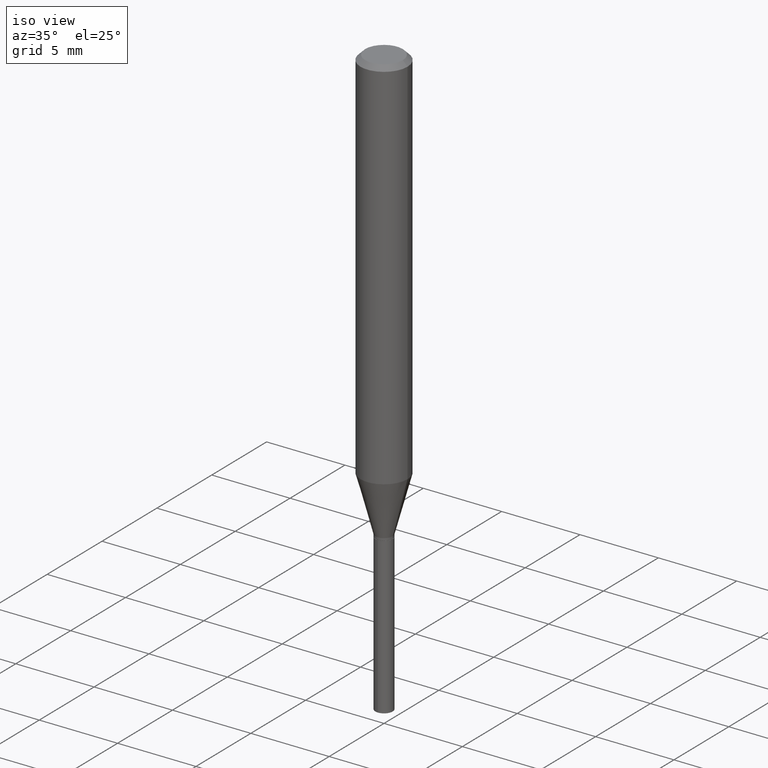
[diagram: clean part render]
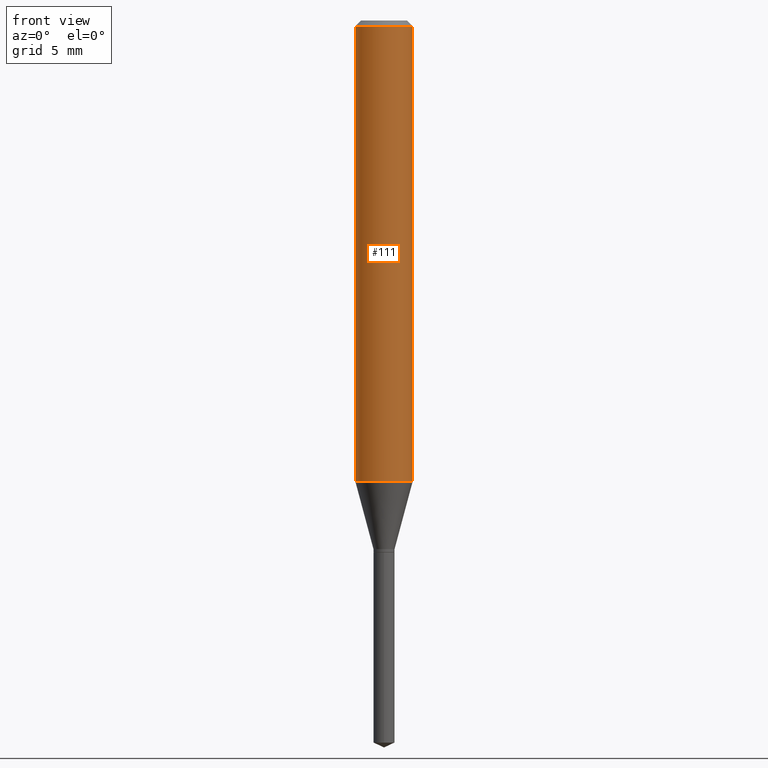
[diagram: tour spotlight — one face highlighted and labeled with its STEP entity id]
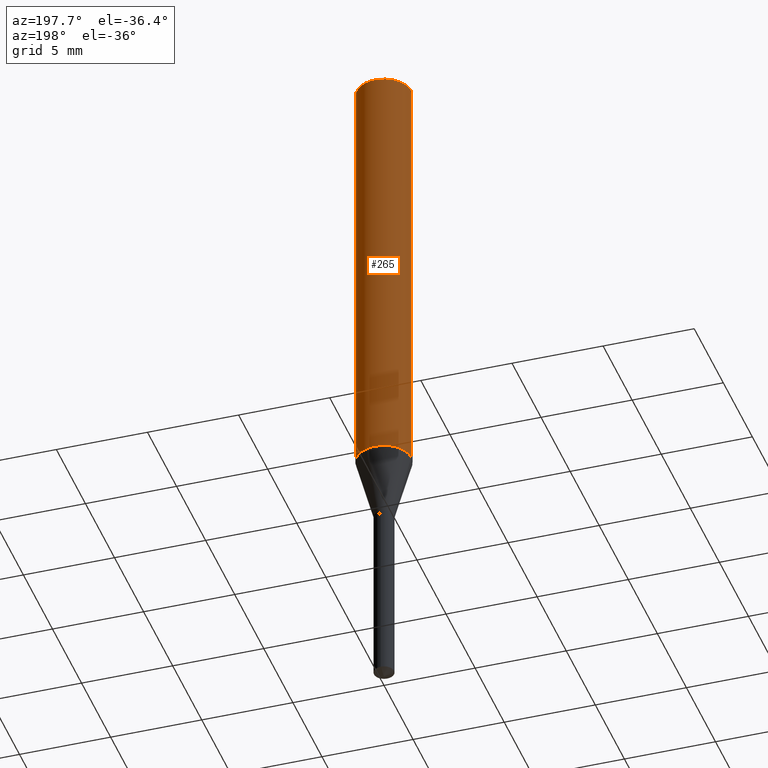
[diagram: tour spotlight — one face highlighted and labeled with its STEP entity id]
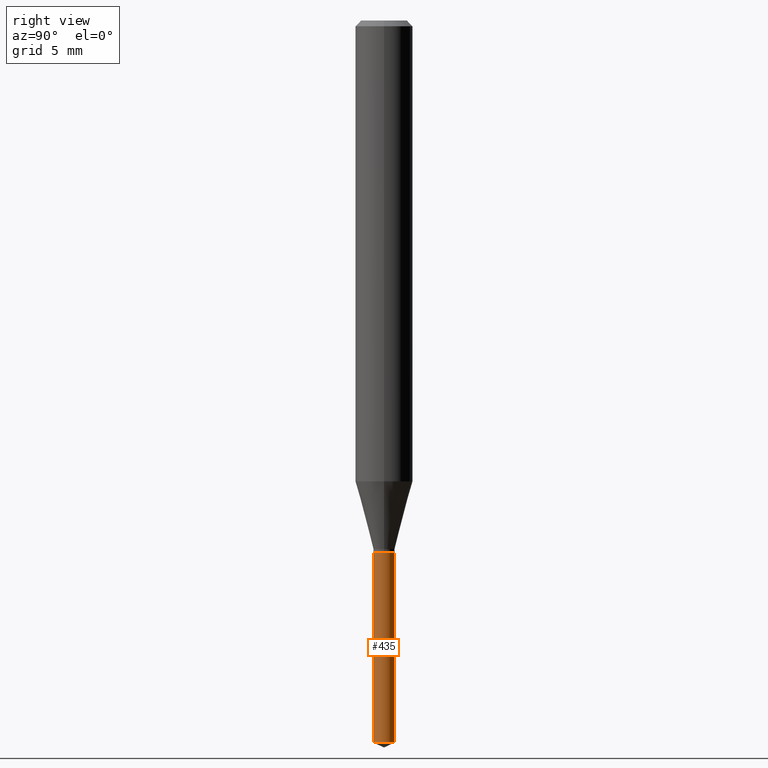
[diagram: tour spotlight — one face highlighted and labeled with its STEP entity id]
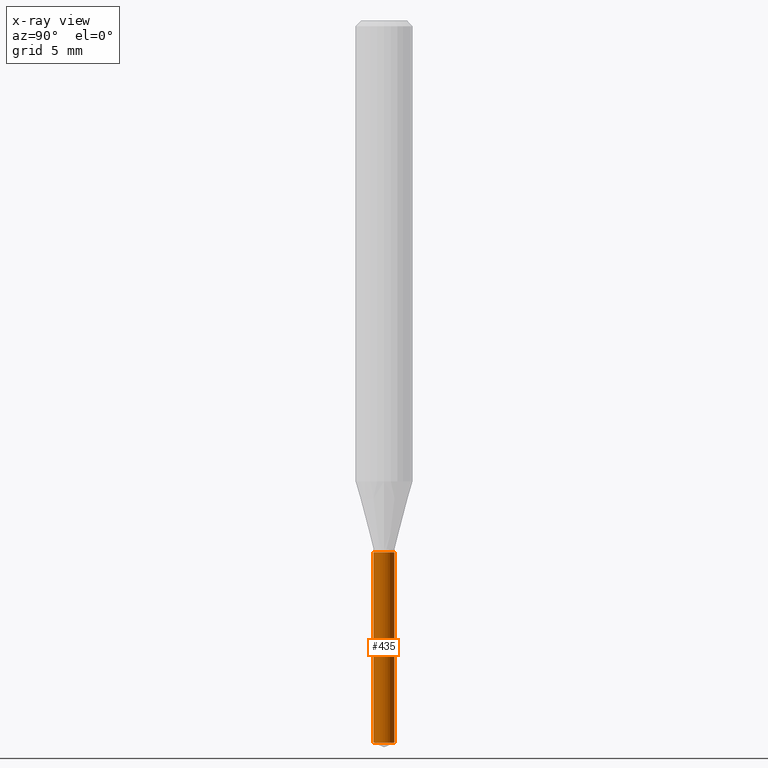
[diagram: x-ray of the same camera — body ghosted, this tour face saturated]
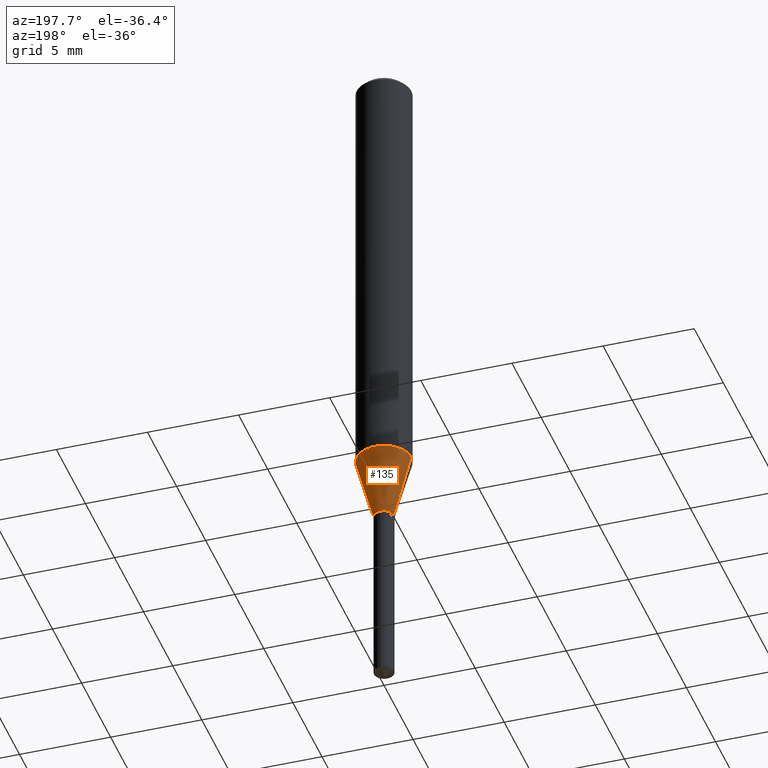
[diagram: tour spotlight — one face highlighted and labeled with its STEP entity id]
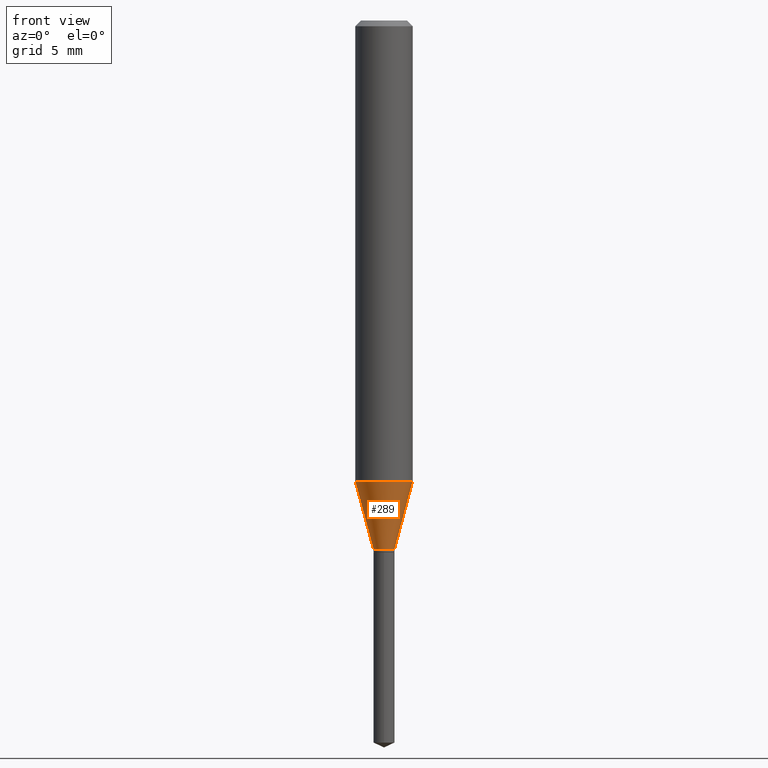
[diagram: tour spotlight — one face highlighted and labeled with its STEP entity id]
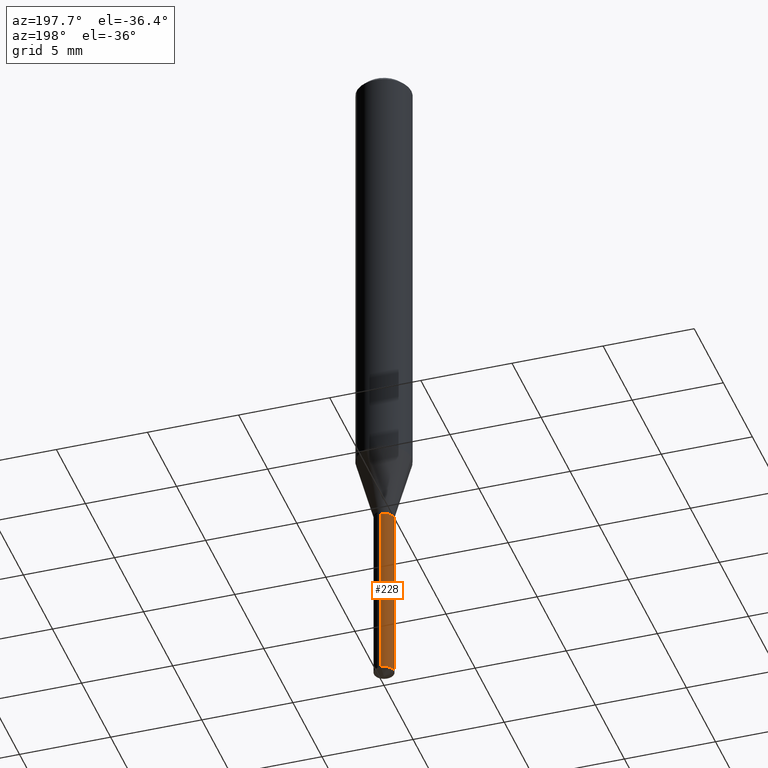
[diagram: tour spotlight — one face highlighted and labeled with its STEP entity id]
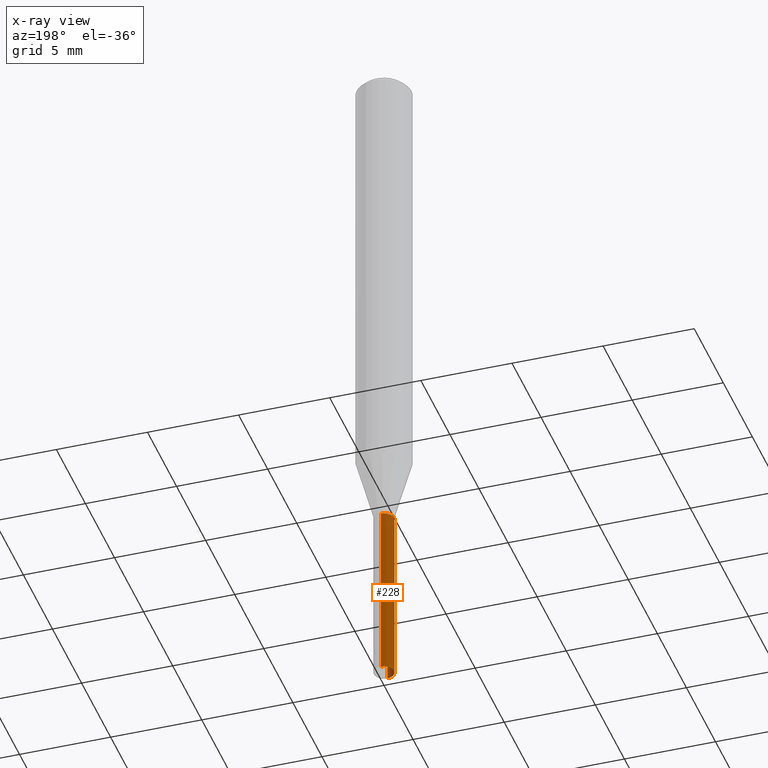
[diagram: x-ray of the same camera — body ghosted, this tour face saturated]
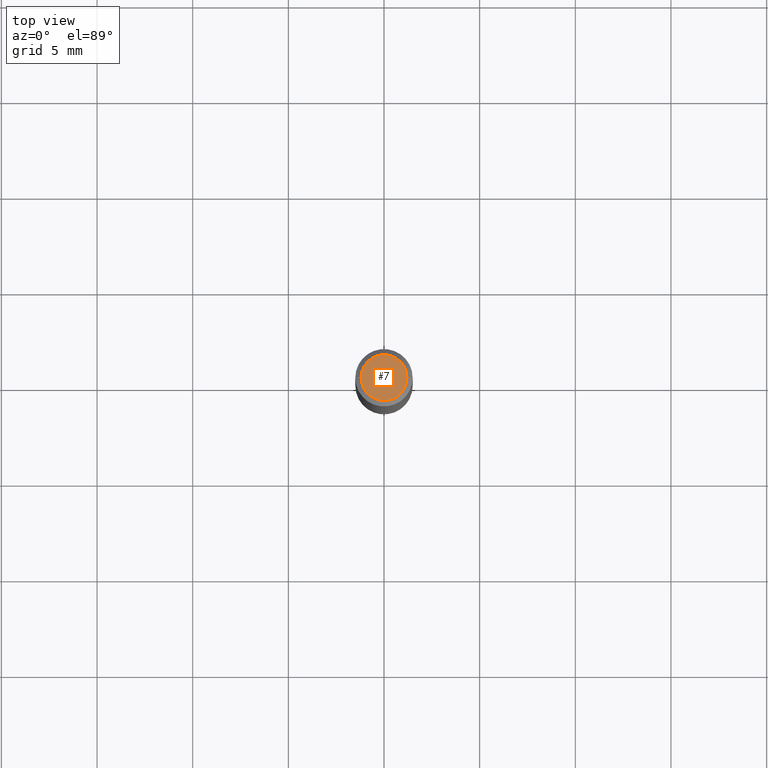
[diagram: tour spotlight — one face highlighted and labeled with its STEP entity id]
A machine part: a face-by-face anatomy tour. The part has 17 B-rep faces; the first image is the clean iso view, then the 7 largest visible faces are spotlighted one at a time (largest first), each with its STEP entity span.

Face 1 — front view, entity #111. In plain terms, the highlighted cylindrical surface (edge-blend (fillet) strip) has radius 1.4999 mm, axis along (-0, 0, 1).
Definition (entity closure, byte-faithful):
#5 = CARTESIAN_POINT ( 'NONE',  ( -0.05905000000000005383, 4.195754854663395423E-16, -2.904631170795524694E-30 ) ) ;
#25 = DIRECTION ( 'NONE',  ( -2.445468806185136877E-29, 3.491481338843145188E-15, 1.000000000000000000 ) ) ;
#41 = VECTOR ( 'NONE', #25, 39.37007874015748143 ) ;
#72 = ORIENTED_EDGE ( 'NONE', *, *, #449, .F. ) ;
#98 = CARTESIAN_POINT ( 'NONE',  ( 0.000000000000000000, 0.000000000000000000, 0.000000000000000000 ) ) ;
#106 = CARTESIAN_POINT ( 'NONE',  ( 0.05905000000000005383, -4.123439461173744271E-16, 2.879382386107502672E-30 ) ) ;
#111 = ADVANCED_FACE ( 'NONE', ( #313 ), #235, .T. ) ;
#120 = DIRECTION ( 'NONE',  ( 1.000000000000000000, -6.982962677686268288E-15, 0.000000000000000000 ) ) ;
#123 = DIRECTION ( 'NONE',  ( -2.445468806185136597E-29, 3.491481338843145583E-15, 1.000000000000000000 ) ) ;
#140 = VERTEX_POINT ( 'NONE', #201 ) ;
#155 = CARTESIAN_POINT ( 'NONE',  ( 2.319334703774938561E-29, -3.311395269602319629E-15, -0.9484212997969236891 ) ) ;
#161 = VERTEX_POINT ( 'NONE', #345 ) ;
#163 = EDGE_CURVE ( 'NONE', #274, #140, #276, .T. ) ;
#169 = AXIS2_PLACEMENT_3D ( 'NONE', #98, #123, #244 ) ;
#173 = EDGE_CURVE ( 'NONE', #274, #161, #452, .T. ) ;
#183 = AXIS2_PLACEMENT_3D ( 'NONE', #155, #310, #347 ) ;
#190 = ORIENTED_EDGE ( 'NONE', *, *, #163, .F. ) ;
#201 = CARTESIAN_POINT ( 'NONE',  ( -0.05905000000000000526, -1.256739346640688792E-15, -0.01181000000000007565 ) ) ;
#235 = CYLINDRICAL_SURFACE ( 'NONE', #169, 0.05905000000000005383 ) ;
#236 = ORIENTED_EDGE ( 'NONE', *, *, #173, .T. ) ;
#238 = DIRECTION ( 'NONE',  ( -2.445468806185136877E-29, 3.491481338843145188E-15, 1.000000000000000000 ) ) ;
#244 = DIRECTION ( 'NONE',  ( 1.000000000000000000, -6.982962677686266711E-15, 4.876176775795935793E-29 ) ) ;
#267 = VERTEX_POINT ( 'NONE', #476 ) ;
#274 = VERTEX_POINT ( 'NONE', #284 ) ;
#276 = LINE ( 'NONE', #5, #328 ) ;
#284 = CARTESIAN_POINT ( 'NONE',  ( -0.05905000000000010241, -2.891819784135979347E-15, -0.9484212997969236891 ) ) ;
#287 = AXIS2_PLACEMENT_3D ( 'NONE', #337, #416, #120 ) ;
#310 = DIRECTION ( 'NONE',  ( -2.445468806185136597E-29, 3.491481338843145583E-15, 1.000000000000000000 ) ) ;
#313 = FACE_OUTER_BOUND ( 'NONE', #376, .T. ) ;
#316 = ORIENTED_EDGE ( 'NONE', *, *, #334, .T. ) ;
#328 = VECTOR ( 'NONE', #238, 39.37007874015748143 ) ;
#334 = EDGE_CURVE ( 'NONE', #161, #267, #475, .T. ) ;
#337 = CARTESIAN_POINT ( 'NONE',  ( 2.888098660104664642E-31, -4.123439461173780879E-17, -0.01181000000000007565 ) ) ;
#345 = CARTESIAN_POINT ( 'NONE',  ( 0.05905000000000010241, -3.723739215719694549E-15, -0.9484212997969236891 ) ) ;
#347 = DIRECTION ( 'NONE',  ( 1.000000000000000000, -6.982962677686268288E-15, 0.000000000000000000 ) ) ;
#376 = EDGE_LOOP ( 'NONE', ( #190, #236, #316, #72 ) ) ;
#416 = DIRECTION ( 'NONE',  ( -2.445468806185136597E-29, 3.491481338843145583E-15, 1.000000000000000000 ) ) ;
#447 = CIRCLE ( 'NONE', #287, 0.05905000000000000526 ) ;
#449 = EDGE_CURVE ( 'NONE', #140, #267, #447, .T. ) ;
#452 = CIRCLE ( 'NONE', #183, 0.05905000000000010241 ) ;
#475 = LINE ( 'NONE', #106, #41 ) ;
#476 = CARTESIAN_POINT ( 'NONE',  ( 0.05905000000000000526, -4.535783407291119586E-16, -0.01181000000000007565 ) ) ;

Face 2 — auxiliary view, entity #265. In plain terms, the highlighted cylindrical surface (edge-blend (fillet) strip) has radius 1.4999 mm, axis along (-0, 0, 1).
Definition (entity closure, byte-faithful):
#5 = CARTESIAN_POINT ( 'NONE',  ( -0.05905000000000005383, 4.195754854663395423E-16, -2.904631170795524694E-30 ) ) ;
#25 = DIRECTION ( 'NONE',  ( -2.445468806185136877E-29, 3.491481338843145188E-15, 1.000000000000000000 ) ) ;
#41 = VECTOR ( 'NONE', #25, 39.37007874015748143 ) ;
#49 = AXIS2_PLACEMENT_3D ( 'NONE', #109, #255, #68 ) ;
#63 = ORIENTED_EDGE ( 'NONE', *, *, #334, .F. ) ;
#68 = DIRECTION ( 'NONE',  ( 1.000000000000000000, -6.982962677686268288E-15, 0.000000000000000000 ) ) ;
#104 = EDGE_CURVE ( 'NONE', #267, #140, #430, .T. ) ;
#106 = CARTESIAN_POINT ( 'NONE',  ( 0.05905000000000005383, -4.123439461173744271E-16, 2.879382386107502672E-30 ) ) ;
#109 = CARTESIAN_POINT ( 'NONE',  ( 2.319334703774938561E-29, -3.311395269602319629E-15, -0.9484212997969236891 ) ) ;
#140 = VERTEX_POINT ( 'NONE', #201 ) ;
#141 = DIRECTION ( 'NONE',  ( -2.445468806185136597E-29, 3.491481338843145583E-15, 1.000000000000000000 ) ) ;
#161 = VERTEX_POINT ( 'NONE', #345 ) ;
#163 = EDGE_CURVE ( 'NONE', #274, #140, #276, .T. ) ;
#167 = DIRECTION ( 'NONE',  ( 1.000000000000000000, -6.982962677686268288E-15, 0.000000000000000000 ) ) ;
#201 = CARTESIAN_POINT ( 'NONE',  ( -0.05905000000000000526, -1.256739346640688792E-15, -0.01181000000000007565 ) ) ;
#210 = ORIENTED_EDGE ( 'NONE', *, *, #104, .F. ) ;
#222 = CIRCLE ( 'NONE', #49, 0.05905000000000010241 ) ;
#238 = DIRECTION ( 'NONE',  ( -2.445468806185136877E-29, 3.491481338843145188E-15, 1.000000000000000000 ) ) ;
#239 = AXIS2_PLACEMENT_3D ( 'NONE', #368, #141, #472 ) ;
#245 = ORIENTED_EDGE ( 'NONE', *, *, #302, .T. ) ;
#250 = FACE_OUTER_BOUND ( 'NONE', #395, .T. ) ;
#255 = DIRECTION ( 'NONE',  ( -2.445468806185136597E-29, 3.491481338843145583E-15, 1.000000000000000000 ) ) ;
#265 = ADVANCED_FACE ( 'NONE', ( #250 ), #365, .T. ) ;
#267 = VERTEX_POINT ( 'NONE', #476 ) ;
#274 = VERTEX_POINT ( 'NONE', #284 ) ;
#276 = LINE ( 'NONE', #5, #328 ) ;
#284 = CARTESIAN_POINT ( 'NONE',  ( -0.05905000000000010241, -2.891819784135979347E-15, -0.9484212997969236891 ) ) ;
#302 = EDGE_CURVE ( 'NONE', #161, #274, #222, .T. ) ;
#328 = VECTOR ( 'NONE', #238, 39.37007874015748143 ) ;
#334 = EDGE_CURVE ( 'NONE', #161, #267, #475, .T. ) ;
#345 = CARTESIAN_POINT ( 'NONE',  ( 0.05905000000000010241, -3.723739215719694549E-15, -0.9484212997969236891 ) ) ;
#365 = CYLINDRICAL_SURFACE ( 'NONE', #239, 0.05905000000000005383 ) ;
#368 = CARTESIAN_POINT ( 'NONE',  ( 0.000000000000000000, 0.000000000000000000, 0.000000000000000000 ) ) ;
#394 = CARTESIAN_POINT ( 'NONE',  ( 2.888098660104664642E-31, -4.123439461173780879E-17, -0.01181000000000007565 ) ) ;
#395 = EDGE_LOOP ( 'NONE', ( #245, #457, #210, #63 ) ) ;
#430 = CIRCLE ( 'NONE', #439, 0.05905000000000000526 ) ;
#434 = DIRECTION ( 'NONE',  ( -2.445468806185136597E-29, 3.491481338843145583E-15, 1.000000000000000000 ) ) ;
#439 = AXIS2_PLACEMENT_3D ( 'NONE', #394, #434, #167 ) ;
#457 = ORIENTED_EDGE ( 'NONE', *, *, #163, .T. ) ;
#472 = DIRECTION ( 'NONE',  ( 1.000000000000000000, -6.982962677686266711E-15, 4.876176775795935793E-29 ) ) ;
#475 = LINE ( 'NONE', #106, #41 ) ;
#476 = CARTESIAN_POINT ( 'NONE',  ( 0.05905000000000000526, -4.535783407291119586E-16, -0.01181000000000007565 ) ) ;

Face 3 — right view, entity #435. An x-ray twin of the same camera follows (body ghosted, this face saturated) — the face is partly hidden behind the body. In plain terms, the highlighted cylindrical surface (edge-blend (fillet) strip) has radius 0.5499 mm, axis along (-0, 0, 1).
Definition (entity closure, byte-faithful):
#26 = AXIS2_PLACEMENT_3D ( 'NONE', #369, #258, #266 ) ;
#56 = LINE ( 'NONE', #199, #221 ) ;
#79 = EDGE_CURVE ( 'NONE', #152, #455, #406, .T. ) ;
#88 = CARTESIAN_POINT ( 'NONE',  ( 1.538325022920980454E-16, 0.02164999999999617578, -1.094500000000000028 ) ) ;
#92 = CARTESIAN_POINT ( 'NONE',  ( 2.676565608369631794E-29, -3.821426325363822773E-15, -1.094499999999999806 ) ) ;
#97 = VERTEX_POINT ( 'NONE', #88 ) ;
#102 = ORIENTED_EDGE ( 'NONE', *, *, #464, .F. ) ;
#115 = EDGE_CURVE ( 'NONE', #373, #97, #483, .T. ) ;
#126 = CARTESIAN_POINT ( 'NONE',  ( -1.511811419718712709E-16, -0.02165000000000518246, -1.486004439200944605 ) ) ;
#132 = DIRECTION ( 'NONE',  ( -6.982962677686265922E-15, -1.000000000000000000, 0.000000000000000000 ) ) ;
#142 = EDGE_CURVE ( 'NONE', #455, #97, #56, .T. ) ;
#143 = AXIS2_PLACEMENT_3D ( 'NONE', #92, #172, #397 ) ;
#152 = VERTEX_POINT ( 'NONE', #126 ) ;
#172 = DIRECTION ( 'NONE',  ( -2.445402730703145379E-29, 3.491575962694140016E-15, 1.000000000000000000 ) ) ;
#185 = FACE_OUTER_BOUND ( 'NONE', #353, .T. ) ;
#199 = CARTESIAN_POINT ( 'NONE',  ( 1.538325022920883819E-16, 0.02164999999999617578, -1.094500000000000028 ) ) ;
#221 = VECTOR ( 'NONE', #349, 39.37007874015748143 ) ;
#226 = DIRECTION ( 'NONE',  ( -2.445402730703145379E-29, 3.491575962694140016E-15, 1.000000000000000000 ) ) ;
#230 = CYLINDRICAL_SURFACE ( 'NONE', #26, 0.02164999999999999564 ) ;
#258 = DIRECTION ( 'NONE',  ( -2.445402730703145379E-29, 3.491575962694140016E-15, 1.000000000000000000 ) ) ;
#263 = CARTESIAN_POINT ( 'NONE',  ( -1.511811419718808852E-16, -0.02165000000000381897, -1.094499999999999806 ) ) ;
#264 = CARTESIAN_POINT ( 'NONE',  ( 1.538325022920979468E-16, 0.02164999999999480187, -1.486004439200944605 ) ) ;
#266 = DIRECTION ( 'NONE',  ( -6.982962677686265922E-15, -1.000000000000000000, 6.309117768277745325E-15 ) ) ;
#309 = VECTOR ( 'NONE', #226, 39.37007874015748143 ) ;
#349 = DIRECTION ( 'NONE',  ( -2.445402730703145379E-29, 3.491575962694140016E-15, 1.000000000000000000 ) ) ;
#352 = CARTESIAN_POINT ( 'NONE',  ( 3.633951633074026465E-29, -5.188393814565889832E-15, -1.486004439200944605 ) ) ;
#353 = EDGE_LOOP ( 'NONE', ( #382, #433, #402, #102 ) ) ;
#369 = CARTESIAN_POINT ( 'NONE',  ( 2.676565608369631794E-29, -3.821426325363822773E-15, -1.094499999999999806 ) ) ;
#373 = VERTEX_POINT ( 'NONE', #400 ) ;
#382 = ORIENTED_EDGE ( 'NONE', *, *, #79, .T. ) ;
#397 = DIRECTION ( 'NONE',  ( -6.982962677686265922E-15, -1.000000000000000000, 6.309117768277745325E-15 ) ) ;
#398 = AXIS2_PLACEMENT_3D ( 'NONE', #352, #427, #132 ) ;
#400 = CARTESIAN_POINT ( 'NONE',  ( -1.511811419718808852E-16, -0.02165000000000381897, -1.094499999999999806 ) ) ;
#402 = ORIENTED_EDGE ( 'NONE', *, *, #115, .F. ) ;
#406 = CIRCLE ( 'NONE', #398, 0.02164999999999999564 ) ;
#427 = DIRECTION ( 'NONE',  ( -2.445402730703145379E-29, 3.491575962694140016E-15, 1.000000000000000000 ) ) ;
#433 = ORIENTED_EDGE ( 'NONE', *, *, #142, .T. ) ;
#435 = ADVANCED_FACE ( 'NONE', ( #185 ), #230, .T. ) ;
#448 = LINE ( 'NONE', #263, #309 ) ;
#455 = VERTEX_POINT ( 'NONE', #264 ) ;
#464 = EDGE_CURVE ( 'NONE', #152, #373, #448, .T. ) ;
#483 = CIRCLE ( 'NONE', #143, 0.02164999999999999564 ) ;

Face 4 — auxiliary view, entity #135. In plain terms, the highlighted conical surface has half-angle 15 deg.
Definition (entity closure, byte-faithful):
#13 = DIRECTION ( 'NONE',  ( 1.000000000000000000, -6.982962677686277755E-15, 0.000000000000000000 ) ) ;
#40 = AXIS2_PLACEMENT_3D ( 'NONE', #232, #384, #47 ) ;
#42 = LINE ( 'NONE', #147, #131 ) ;
#47 = DIRECTION ( 'NONE',  ( 1.000000000000000000, -6.982962677686277755E-15, 0.000000000000000000 ) ) ;
#49 = AXIS2_PLACEMENT_3D ( 'NONE', #109, #255, #68 ) ;
#50 = EDGE_LOOP ( 'NONE', ( #231, #418, #324, #299 ) ) ;
#68 = DIRECTION ( 'NONE',  ( 1.000000000000000000, -6.982962677686268288E-15, 0.000000000000000000 ) ) ;
#86 = FACE_OUTER_BOUND ( 'NONE', #50, .T. ) ;
#109 = CARTESIAN_POINT ( 'NONE',  ( 2.319334703774938561E-29, -3.311395269602319629E-15, -0.9484212997969236891 ) ) ;
#131 = VECTOR ( 'NONE', #451, 39.37007874015748143 ) ;
#133 = VERTEX_POINT ( 'NONE', #422 ) ;
#135 = ADVANCED_FACE ( 'NONE', ( #86 ), #168, .T. ) ;
#147 = CARTESIAN_POINT ( 'NONE',  ( -0.02164999999999997135, -3.644899194369281124E-15, -1.088000000000000078 ) ) ;
#161 = VERTEX_POINT ( 'NONE', #345 ) ;
#168 = CONICAL_SURFACE ( 'NONE', #40, 0.02164999999999997135, 0.2617993877991497964 ) ;
#187 = EDGE_CURVE ( 'NONE', #133, #248, #379, .T. ) ;
#206 = CARTESIAN_POINT ( 'NONE',  ( 2.660670061129428738E-29, -3.798731696661342438E-15, -1.088000000000000078 ) ) ;
#222 = CIRCLE ( 'NONE', #49, 0.05905000000000010241 ) ;
#231 = ORIENTED_EDGE ( 'NONE', *, *, #187, .T. ) ;
#232 = CARTESIAN_POINT ( 'NONE',  ( 2.660670061129428738E-29, -3.798731696661342438E-15, -1.088000000000000078 ) ) ;
#248 = VERTEX_POINT ( 'NONE', #361 ) ;
#249 = CARTESIAN_POINT ( 'NONE',  ( 0.02164999999999997135, -3.949912838633250169E-15, -1.088000000000000078 ) ) ;
#252 = DIRECTION ( 'NONE',  ( 0.2588190451025211281, 1.565188264969623940E-15, 0.9659258262890682012 ) ) ;
#254 = VECTOR ( 'NONE', #252, 39.37007874015748143 ) ;
#255 = DIRECTION ( 'NONE',  ( -2.445468806185136597E-29, 3.491481338843145583E-15, 1.000000000000000000 ) ) ;
#272 = DIRECTION ( 'NONE',  ( -2.445468806185136597E-29, 3.491481338843145583E-15, 1.000000000000000000 ) ) ;
#274 = VERTEX_POINT ( 'NONE', #284 ) ;
#284 = CARTESIAN_POINT ( 'NONE',  ( -0.05905000000000010241, -2.891819784135979347E-15, -0.9484212997969236891 ) ) ;
#299 = ORIENTED_EDGE ( 'NONE', *, *, #399, .F. ) ;
#302 = EDGE_CURVE ( 'NONE', #161, #274, #222, .T. ) ;
#324 = ORIENTED_EDGE ( 'NONE', *, *, #302, .F. ) ;
#330 = LINE ( 'NONE', #249, #254 ) ;
#345 = CARTESIAN_POINT ( 'NONE',  ( 0.05905000000000010241, -3.723739215719694549E-15, -0.9484212997969236891 ) ) ;
#361 = CARTESIAN_POINT ( 'NONE',  ( -0.02164999999999997135, -3.655373638385810145E-15, -1.088000000000000078 ) ) ;
#379 = CIRCLE ( 'NONE', #446, 0.02164999999999997135 ) ;
#384 = DIRECTION ( 'NONE',  ( -2.445468806185136597E-29, 3.491481338843145583E-15, 1.000000000000000000 ) ) ;
#399 = EDGE_CURVE ( 'NONE', #133, #161, #330, .T. ) ;
#418 = ORIENTED_EDGE ( 'NONE', *, *, #477, .T. ) ;
#422 = CARTESIAN_POINT ( 'NONE',  ( 0.02164999999999997135, -3.949912838633250169E-15, -1.088000000000000078 ) ) ;
#446 = AXIS2_PLACEMENT_3D ( 'NONE', #206, #272, #13 ) ;
#451 = DIRECTION ( 'NONE',  ( -0.2588190451025211281, 5.211531920934548675E-15, 0.9659258262890682012 ) ) ;
#477 = EDGE_CURVE ( 'NONE', #248, #274, #42, .T. ) ;

Face 5 — front view, entity #289. In plain terms, the highlighted conical surface has half-angle 15 deg.
Definition (entity closure, byte-faithful):
#9 = ORIENTED_EDGE ( 'NONE', *, *, #173, .F. ) ;
#29 = DIRECTION ( 'NONE',  ( -2.445468806185136597E-29, 3.491481338843145583E-15, 1.000000000000000000 ) ) ;
#42 = LINE ( 'NONE', #147, #131 ) ;
#64 = DIRECTION ( 'NONE',  ( -2.445468806185136597E-29, 3.491481338843145583E-15, 1.000000000000000000 ) ) ;
#70 = DIRECTION ( 'NONE',  ( 1.000000000000000000, -6.982962677686277755E-15, 0.000000000000000000 ) ) ;
#99 = ORIENTED_EDGE ( 'NONE', *, *, #339, .T. ) ;
#131 = VECTOR ( 'NONE', #451, 39.37007874015748143 ) ;
#133 = VERTEX_POINT ( 'NONE', #422 ) ;
#144 = AXIS2_PLACEMENT_3D ( 'NONE', #404, #29, #70 ) ;
#147 = CARTESIAN_POINT ( 'NONE',  ( -0.02164999999999997135, -3.644899194369281124E-15, -1.088000000000000078 ) ) ;
#155 = CARTESIAN_POINT ( 'NONE',  ( 2.319334703774938561E-29, -3.311395269602319629E-15, -0.9484212997969236891 ) ) ;
#161 = VERTEX_POINT ( 'NONE', #345 ) ;
#171 = EDGE_LOOP ( 'NONE', ( #220, #99, #429, #9 ) ) ;
#173 = EDGE_CURVE ( 'NONE', #274, #161, #452, .T. ) ;
#180 = CARTESIAN_POINT ( 'NONE',  ( 2.660670061129428738E-29, -3.798731696661342438E-15, -1.088000000000000078 ) ) ;
#183 = AXIS2_PLACEMENT_3D ( 'NONE', #155, #310, #347 ) ;
#193 = CONICAL_SURFACE ( 'NONE', #441, 0.02164999999999997135, 0.2617993877991497964 ) ;
#214 = FACE_OUTER_BOUND ( 'NONE', #171, .T. ) ;
#220 = ORIENTED_EDGE ( 'NONE', *, *, #477, .F. ) ;
#248 = VERTEX_POINT ( 'NONE', #361 ) ;
#249 = CARTESIAN_POINT ( 'NONE',  ( 0.02164999999999997135, -3.949912838633250169E-15, -1.088000000000000078 ) ) ;
#252 = DIRECTION ( 'NONE',  ( 0.2588190451025211281, 1.565188264969623940E-15, 0.9659258262890682012 ) ) ;
#254 = VECTOR ( 'NONE', #252, 39.37007874015748143 ) ;
#274 = VERTEX_POINT ( 'NONE', #284 ) ;
#284 = CARTESIAN_POINT ( 'NONE',  ( -0.05905000000000010241, -2.891819784135979347E-15, -0.9484212997969236891 ) ) ;
#289 = ADVANCED_FACE ( 'NONE', ( #214 ), #193, .T. ) ;
#310 = DIRECTION ( 'NONE',  ( -2.445468806185136597E-29, 3.491481338843145583E-15, 1.000000000000000000 ) ) ;
#330 = LINE ( 'NONE', #249, #254 ) ;
#339 = EDGE_CURVE ( 'NONE', #248, #133, #356, .T. ) ;
#345 = CARTESIAN_POINT ( 'NONE',  ( 0.05905000000000010241, -3.723739215719694549E-15, -0.9484212997969236891 ) ) ;
#347 = DIRECTION ( 'NONE',  ( 1.000000000000000000, -6.982962677686268288E-15, 0.000000000000000000 ) ) ;
#356 = CIRCLE ( 'NONE', #144, 0.02164999999999997135 ) ;
#361 = CARTESIAN_POINT ( 'NONE',  ( -0.02164999999999997135, -3.655373638385810145E-15, -1.088000000000000078 ) ) ;
#399 = EDGE_CURVE ( 'NONE', #133, #161, #330, .T. ) ;
#404 = CARTESIAN_POINT ( 'NONE',  ( 2.660670061129428738E-29, -3.798731696661342438E-15, -1.088000000000000078 ) ) ;
#422 = CARTESIAN_POINT ( 'NONE',  ( 0.02164999999999997135, -3.949912838633250169E-15, -1.088000000000000078 ) ) ;
#429 = ORIENTED_EDGE ( 'NONE', *, *, #399, .T. ) ;
#441 = AXIS2_PLACEMENT_3D ( 'NONE', #180, #64, #445 ) ;
#445 = DIRECTION ( 'NONE',  ( 1.000000000000000000, -6.982962677686277755E-15, 0.000000000000000000 ) ) ;
#451 = DIRECTION ( 'NONE',  ( -0.2588190451025211281, 5.211531920934548675E-15, 0.9659258262890682012 ) ) ;
#452 = CIRCLE ( 'NONE', #183, 0.05905000000000010241 ) ;
#477 = EDGE_CURVE ( 'NONE', #248, #274, #42, .T. ) ;

Face 6 — auxiliary view, entity #228. An x-ray twin of the same camera follows (body ghosted, this face saturated) — the face is partly hidden behind the body. In plain terms, the highlighted cylindrical surface (edge-blend (fillet) strip) has radius 0.5499 mm, axis along (-0, 0, 1).
Definition (entity closure, byte-faithful):
#33 = ORIENTED_EDGE ( 'NONE', *, *, #464, .T. ) ;
#55 = ORIENTED_EDGE ( 'NONE', *, *, #142, .F. ) ;
#56 = LINE ( 'NONE', #199, #221 ) ;
#62 = CARTESIAN_POINT ( 'NONE',  ( 2.676565608369631794E-29, -3.821426325363822773E-15, -1.094499999999999806 ) ) ;
#84 = AXIS2_PLACEMENT_3D ( 'NONE', #403, #409, #175 ) ;
#88 = CARTESIAN_POINT ( 'NONE',  ( 1.538325022920980454E-16, 0.02164999999999617578, -1.094500000000000028 ) ) ;
#97 = VERTEX_POINT ( 'NONE', #88 ) ;
#107 = CYLINDRICAL_SURFACE ( 'NONE', #354, 0.02164999999999999564 ) ;
#126 = CARTESIAN_POINT ( 'NONE',  ( -1.511811419718712709E-16, -0.02165000000000518246, -1.486004439200944605 ) ) ;
#138 = FACE_OUTER_BOUND ( 'NONE', #467, .T. ) ;
#142 = EDGE_CURVE ( 'NONE', #455, #97, #56, .T. ) ;
#151 = AXIS2_PLACEMENT_3D ( 'NONE', #62, #358, #285 ) ;
#152 = VERTEX_POINT ( 'NONE', #126 ) ;
#158 = ORIENTED_EDGE ( 'NONE', *, *, #374, .F. ) ;
#175 = DIRECTION ( 'NONE',  ( -6.982962677686265922E-15, -1.000000000000000000, 0.000000000000000000 ) ) ;
#199 = CARTESIAN_POINT ( 'NONE',  ( 1.538325022920883819E-16, 0.02164999999999617578, -1.094500000000000028 ) ) ;
#209 = CIRCLE ( 'NONE', #84, 0.02164999999999999564 ) ;
#211 = CARTESIAN_POINT ( 'NONE',  ( 2.676565608369631794E-29, -3.821426325363822773E-15, -1.094499999999999806 ) ) ;
#213 = DIRECTION ( 'NONE',  ( -2.445402730703145379E-29, 3.491575962694140016E-15, 1.000000000000000000 ) ) ;
#221 = VECTOR ( 'NONE', #349, 39.37007874015748143 ) ;
#226 = DIRECTION ( 'NONE',  ( -2.445402730703145379E-29, 3.491575962694140016E-15, 1.000000000000000000 ) ) ;
#228 = ADVANCED_FACE ( 'NONE', ( #138 ), #107, .T. ) ;
#246 = EDGE_CURVE ( 'NONE', #455, #152, #209, .T. ) ;
#263 = CARTESIAN_POINT ( 'NONE',  ( -1.511811419718808852E-16, -0.02165000000000381897, -1.094499999999999806 ) ) ;
#264 = CARTESIAN_POINT ( 'NONE',  ( 1.538325022920979468E-16, 0.02164999999999480187, -1.486004439200944605 ) ) ;
#285 = DIRECTION ( 'NONE',  ( -6.982962677686265922E-15, -1.000000000000000000, 6.309117768277745325E-15 ) ) ;
#309 = VECTOR ( 'NONE', #226, 39.37007874015748143 ) ;
#349 = DIRECTION ( 'NONE',  ( -2.445402730703145379E-29, 3.491575962694140016E-15, 1.000000000000000000 ) ) ;
#354 = AXIS2_PLACEMENT_3D ( 'NONE', #211, #213, #480 ) ;
#358 = DIRECTION ( 'NONE',  ( -2.445402730703145379E-29, 3.491575962694140016E-15, 1.000000000000000000 ) ) ;
#373 = VERTEX_POINT ( 'NONE', #400 ) ;
#374 = EDGE_CURVE ( 'NONE', #97, #373, #414, .T. ) ;
#387 = ORIENTED_EDGE ( 'NONE', *, *, #246, .T. ) ;
#400 = CARTESIAN_POINT ( 'NONE',  ( -1.511811419718808852E-16, -0.02165000000000381897, -1.094499999999999806 ) ) ;
#403 = CARTESIAN_POINT ( 'NONE',  ( 3.633951633074026465E-29, -5.188393814565889832E-15, -1.486004439200944605 ) ) ;
#409 = DIRECTION ( 'NONE',  ( -2.445402730703145379E-29, 3.491575962694140016E-15, 1.000000000000000000 ) ) ;
#414 = CIRCLE ( 'NONE', #151, 0.02164999999999999564 ) ;
#448 = LINE ( 'NONE', #263, #309 ) ;
#455 = VERTEX_POINT ( 'NONE', #264 ) ;
#464 = EDGE_CURVE ( 'NONE', #152, #373, #448, .T. ) ;
#467 = EDGE_LOOP ( 'NONE', ( #55, #387, #33, #158 ) ) ;
#480 = DIRECTION ( 'NONE',  ( -6.982962677686265922E-15, -1.000000000000000000, 6.309117768277745325E-15 ) ) ;

Face 7 — top view, entity #7. In plain terms, the highlighted planar face has unit normal (0, -0, -1).
Definition (entity closure, byte-faithful):
#7 = ADVANCED_FACE ( 'NONE', ( #378 ), #336, .F. ) ;
#21 = ORIENTED_EDGE ( 'NONE', *, *, #412, .T. ) ;
#23 = DIRECTION ( 'NONE',  ( -2.445468806185136597E-29, 3.491481338843145583E-15, 1.000000000000000000 ) ) ;
#34 = CARTESIAN_POINT ( 'NONE',  ( 4.132873053354867254E-48, -5.900647395337818946E-34, -1.690012582823346072E-19 ) ) ;
#35 = DIRECTION ( 'NONE',  ( 1.000000000000000000, -6.982962677686266711E-15, 4.876185090822587894E-29 ) ) ;
#38 = CARTESIAN_POINT ( 'NONE',  ( 8.265746106709734507E-48, -1.180129479067563789E-33, -3.380025165646692144E-19 ) ) ;
#39 = DIRECTION ( 'NONE',  ( -1.000000000000000000, 6.982962677686265922E-15, -4.876176775795935793E-29 ) ) ;
#59 = CARTESIAN_POINT ( 'NONE',  ( 0.04724000000000000421, -3.852183633974369838E-16, -3.380025165621689721E-19 ) ) ;
#77 = AXIS2_PLACEMENT_3D ( 'NONE', #38, #113, #35 ) ;
#93 = ORIENTED_EDGE ( 'NONE', *, *, #444, .T. ) ;
#113 = DIRECTION ( 'NONE',  ( -2.445468806185136597E-29, 3.491481338843145583E-15, 1.000000000000000000 ) ) ;
#117 = VERTEX_POINT ( 'NONE', #59 ) ;
#121 = DIRECTION ( 'NONE',  ( 2.438088387897960049E-29, -3.491481338843145188E-15, -1.000000000000000000 ) ) ;
#125 = CARTESIAN_POINT ( 'NONE',  ( -0.04724000000000000421, 3.504923541997677355E-16, -3.380025165670481712E-19 ) ) ;
#139 = DIRECTION ( 'NONE',  ( 1.000000000000000000, -6.982962677686266711E-15, 4.876185090822587894E-29 ) ) ;
#186 = VERTEX_POINT ( 'NONE', #125 ) ;
#197 = EDGE_LOOP ( 'NONE', ( #21, #93 ) ) ;
#262 = CIRCLE ( 'NONE', #77, 0.04724000000000000421 ) ;
#329 = CIRCLE ( 'NONE', #468, 0.04724000000000000421 ) ;
#336 = PLANE ( 'NONE',  #490 ) ;
#378 = FACE_OUTER_BOUND ( 'NONE', #197, .T. ) ;
#412 = EDGE_CURVE ( 'NONE', #186, #117, #329, .T. ) ;
#444 = EDGE_CURVE ( 'NONE', #117, #186, #262, .T. ) ;
#468 = AXIS2_PLACEMENT_3D ( 'NONE', #478, #23, #139 ) ;
#478 = CARTESIAN_POINT ( 'NONE',  ( 8.265746106709734507E-48, -1.180129479067563789E-33, -3.380025165646692144E-19 ) ) ;
#490 = AXIS2_PLACEMENT_3D ( 'NONE', #34, #121, #39 ) ;